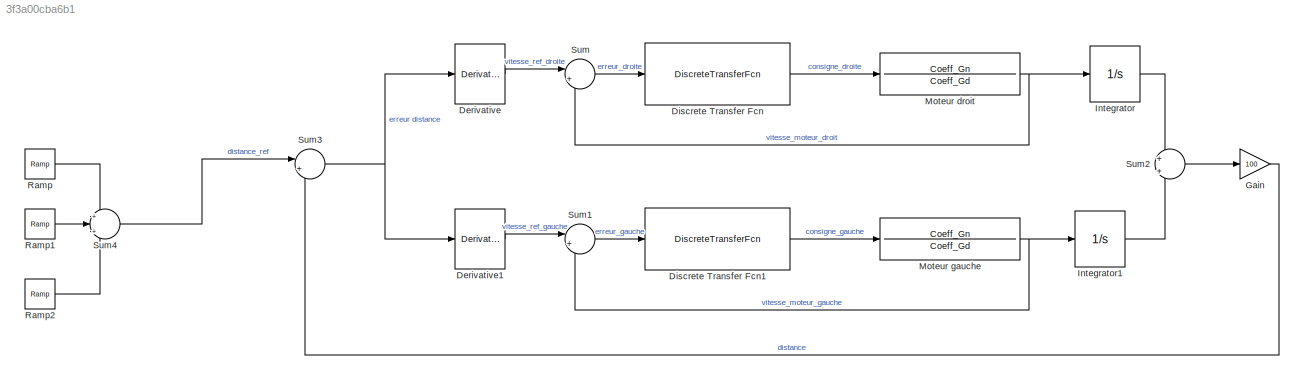
MODEL slx_3f3a00cba6b1
KIND model
CONFIG AbsTol = auto
CONFIG EnableMultiTasking = off
CONFIG FixedStep = auto
CONFIG MaxStep = auto
CONFIG MinStep = auto
CONFIG RelTol = 1e-3
CONFIG SampleTimeConstraint = Unconstrained
CONFIG Solver = VariableStepAuto
CONFIG SolverName = VariableStepAuto
CONFIG StartTime = 0.0
CONFIG StopTime = 10.0
BLOCK [Derivative] Derivative
BLOCK [Derivative] Derivative1
BLOCK [DiscreteTransferFcn] Discrete Transfer Fcn
  Denominator = Coeffdd
  InputPortMap = u0
  Numerator = Coeffnd
  Ports = [1, 1]
  SampleTime = Tech
BLOCK [DiscreteTransferFcn] Discrete Transfer Fcn1
  Denominator = Coeffdd
  InputPortMap = u0
  Numerator = Coeffnd
  Ports = [1, 1]
  SampleTime = Tech
BLOCK [Gain] Gain
  Gain = 100
  OutDataTypeStr = Inherit: Inherit via internal rule
  ParamDataTypeStr = Inherit: Inherit via internal rule
  SaturateOnIntegerOverflow = off
BLOCK [Integrator] Integrator
  Ports = [1, 1]
BLOCK [Integrator] Integrator1
  Ports = [1, 1]
BLOCK [TransferFcn] Moteur droit
  Denominator = Coeff_Gd
  Numerator = Coeff_Gn
BLOCK [TransferFcn] Moteur gauche
  Denominator = Coeff_Gd
  Numerator = Coeff_Gn
BLOCK [Reference] Ramp  REF=simulink/Sources/Ramp
  Ports = [0, 1]
  SourceBlock = simulink/Sources/Ramp
  SourceProductBaseCode = SL
  SourceProductName = Simulink
  SourceType = Ramp
BLOCK [Reference] Ramp1  REF=simulink/Sources/Ramp
  Ports = [0, 1]
  SourceBlock = simulink/Sources/Ramp
  SourceProductBaseCode = SL
  SourceProductName = Simulink
  SourceType = Ramp
BLOCK [Reference] Ramp2  REF=simulink/Sources/Ramp
  Ports = [0, 1]
  SourceBlock = simulink/Sources/Ramp
  SourceProductBaseCode = SL
  SourceProductName = Simulink
  SourceType = Ramp
BLOCK [Sum] Sum
  IconShape = round
  InputSameDT = off
  Inputs = |+-
  OutDataTypeStr = Inherit: Inherit via internal rule
  Ports = [2, 1]
  SaturateOnIntegerOverflow = off
BLOCK [Sum] Sum1
  IconShape = round
  InputSameDT = off
  Inputs = |+-
  OutDataTypeStr = Inherit: Inherit via internal rule
  Ports = [2, 1]
  SaturateOnIntegerOverflow = off
BLOCK [Sum] Sum2
  IconShape = round
  InputSameDT = off
  Inputs = +|+
  OutDataTypeStr = Inherit: Inherit via internal rule
  Ports = [2, 1]
  SaturateOnIntegerOverflow = off
BLOCK [Sum] Sum3
  IconShape = round
  InputSameDT = off
  Inputs = |+-
  OutDataTypeStr = Inherit: Inherit via internal rule
  Ports = [2, 1]
  SaturateOnIntegerOverflow = off
BLOCK [Sum] Sum4
  IconShape = round
  InputSameDT = off
  Inputs = +|+|+
  OutDataTypeStr = Inherit: Inherit via internal rule
  Ports = [3, 1]
  SaturateOnIntegerOverflow = off
LINE Derivative1:1 -> Sum1:1
LINE Derivative:1 -> Sum:1
LINE Discrete Transfer Fcn1:1 -> Moteur gauche:1
LINE Discrete Transfer Fcn:1 -> Moteur droit:1
LINE Gain:1 -> Sum3:2
LINE Integrator1:1 -> Sum2:2
LINE Integrator:1 -> Sum2:1
NET Moteur droit:1 -> Integrator:1, Sum:2
NET Moteur gauche:1 -> Integrator1:1, Sum1:2
LINE Ramp1:1 -> Sum4:2
LINE Ramp2:1 -> Sum4:3
LINE Ramp:1 -> Sum4:1
LINE Sum1:1 -> Discrete Transfer Fcn1:1
LINE Sum2:1 -> Gain:1
NET Sum3:1 -> Derivative1:1, Derivative:1
LINE Sum4:1 -> Sum3:1
LINE Sum:1 -> Discrete Transfer Fcn:1
note: NET lines group one-source signal fan-out (src -> all destinations, sorted); 1:1 wires keep LINE
